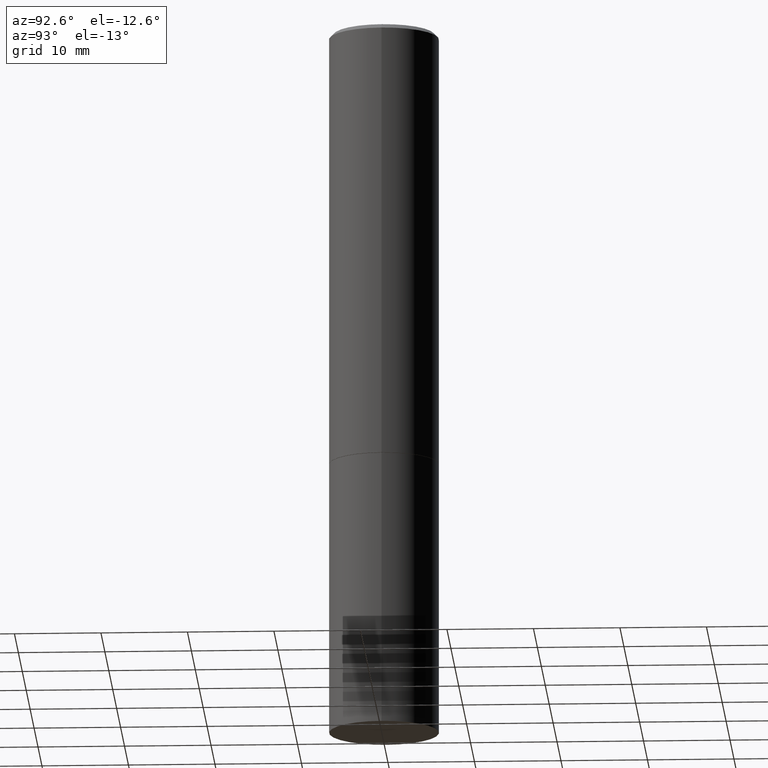
[diagram: clean part render]
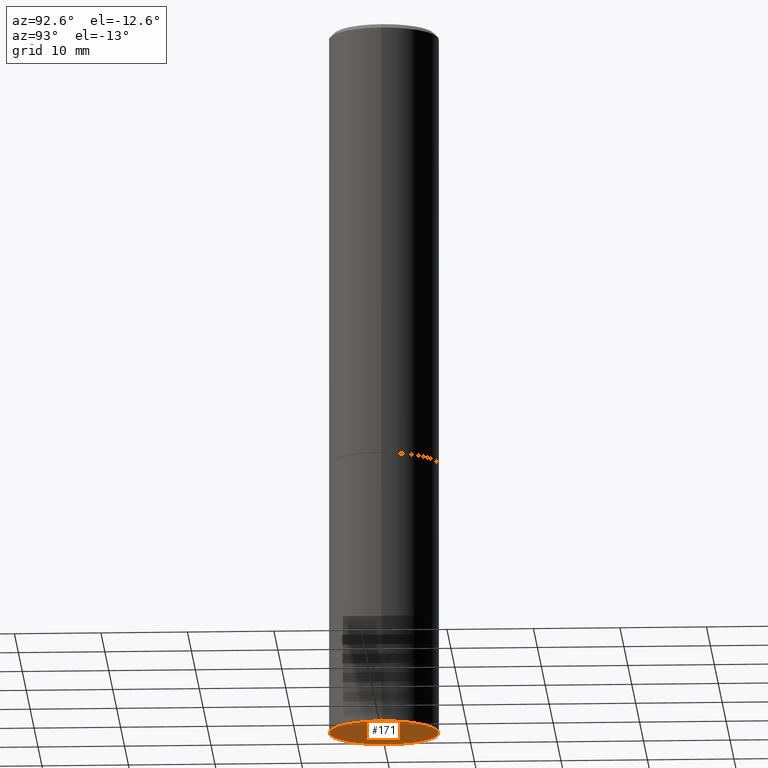
[diagram: same view with one face highlighted and labeled with its STEP entity id]
A machine part, auxiliary view. The second image highlights one B-rep face of the part: STEP entity #171.
In plain terms, the highlighted planar face has unit normal (0, -0, -1).
Its self-contained STEP definition (entity closure, byte-faithful):
#3 = VERTEX_POINT ( 'NONE', #323 ) ;
#30 = DIRECTION ( 'NONE',  ( 1.000000000000000000, -6.982962677686262766E-15, 0.000000000000000000 ) ) ;
#51 = AXIS2_PLACEMENT_3D ( 'NONE', #166, #113, #30 ) ;
#68 = ORIENTED_EDGE ( 'NONE', *, *, #317, .F. ) ;
#84 = AXIS2_PLACEMENT_3D ( 'NONE', #252, #308, #170 ) ;
#109 = AXIS2_PLACEMENT_3D ( 'NONE', #181, #287, #315 ) ;
#110 = EDGE_CURVE ( 'NONE', #135, #3, #161, .T. ) ;
#113 = DIRECTION ( 'NONE',  ( -2.445468806185136597E-29, 3.491481338843145583E-15, 1.000000000000000000 ) ) ;
#135 = VERTEX_POINT ( 'NONE', #278 ) ;
#158 = ORIENTED_EDGE ( 'NONE', *, *, #110, .F. ) ;
#161 = CIRCLE ( 'NONE', #51, 0.2500000000000000000 ) ;
#166 = CARTESIAN_POINT ( 'NONE',  ( 7.947773620101693940E-29, -1.134731435124022443E-14, -3.250000000000000000 ) ) ;
#170 = DIRECTION ( 'NONE',  ( -1.000000000000000000, 6.982962677686265922E-15, -4.876176775795935793E-29 ) ) ;
#171 = ADVANCED_FACE ( 'NONE', ( #306 ), #199, .T. ) ;
#181 = CARTESIAN_POINT ( 'NONE',  ( 7.947773620101693940E-29, -1.134731435124022443E-14, -3.250000000000000000 ) ) ;
#199 = PLANE ( 'NONE',  #84 ) ;
#252 = CARTESIAN_POINT ( 'NONE',  ( 1.745740669421645958E-15, 0.2499999999999886480, -3.250000000000001332 ) ) ;
#269 = EDGE_LOOP ( 'NONE', ( #158, #68 ) ) ;
#278 = CARTESIAN_POINT ( 'NONE',  ( 0.2500000000000000000, -1.309305502066178953E-14, -3.250000000000000000 ) ) ;
#287 = DIRECTION ( 'NONE',  ( -2.445468806185136597E-29, 3.491481338843145583E-15, 1.000000000000000000 ) ) ;
#290 = CIRCLE ( 'NONE', #109, 0.2500000000000000000 ) ;
#306 = FACE_OUTER_BOUND ( 'NONE', #269, .T. ) ;
#308 = DIRECTION ( 'NONE',  ( 2.438088387897960049E-29, -3.491481338843145188E-15, -1.000000000000000000 ) ) ;
#315 = DIRECTION ( 'NONE',  ( 1.000000000000000000, -6.982962677686262766E-15, 0.000000000000000000 ) ) ;
#317 = EDGE_CURVE ( 'NONE', #3, #135, #290, .T. ) ;
#323 = CARTESIAN_POINT ( 'NONE',  ( -0.2500000000000000000, -7.388781675063007725E-15, -3.250000000000000000 ) ) ;